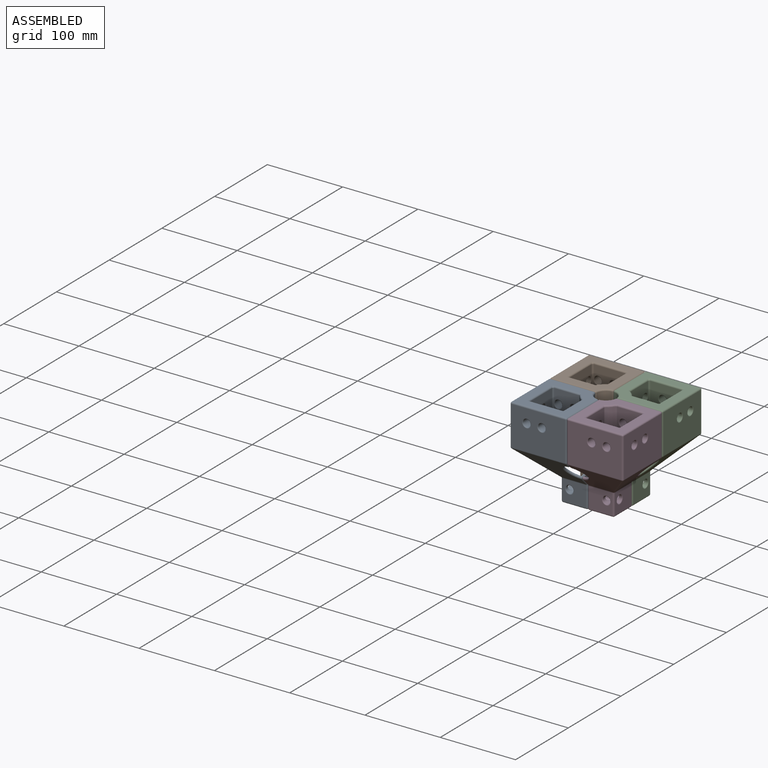
[diagram: assembled view]
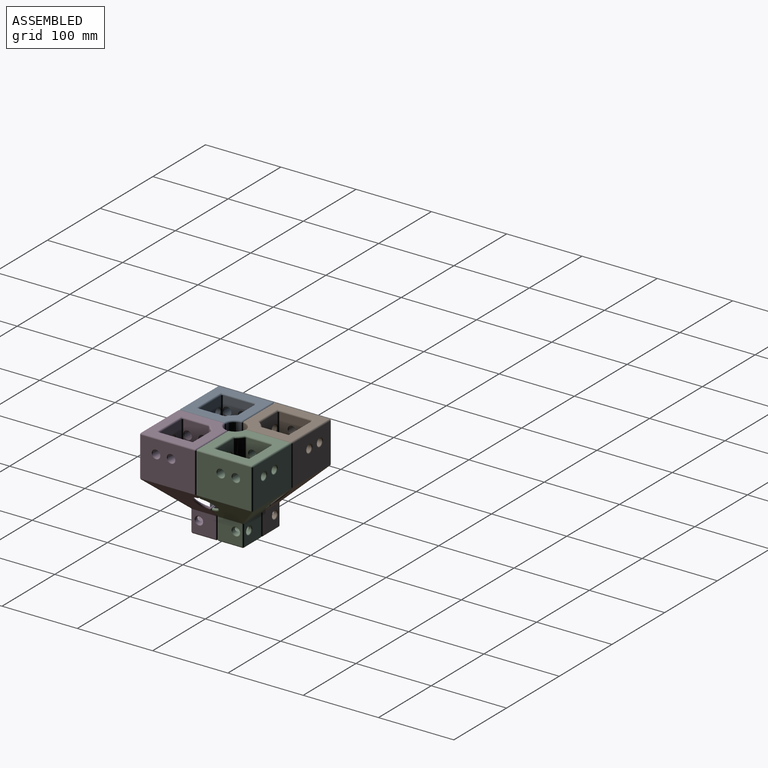
[diagram: assembled view, second angle]
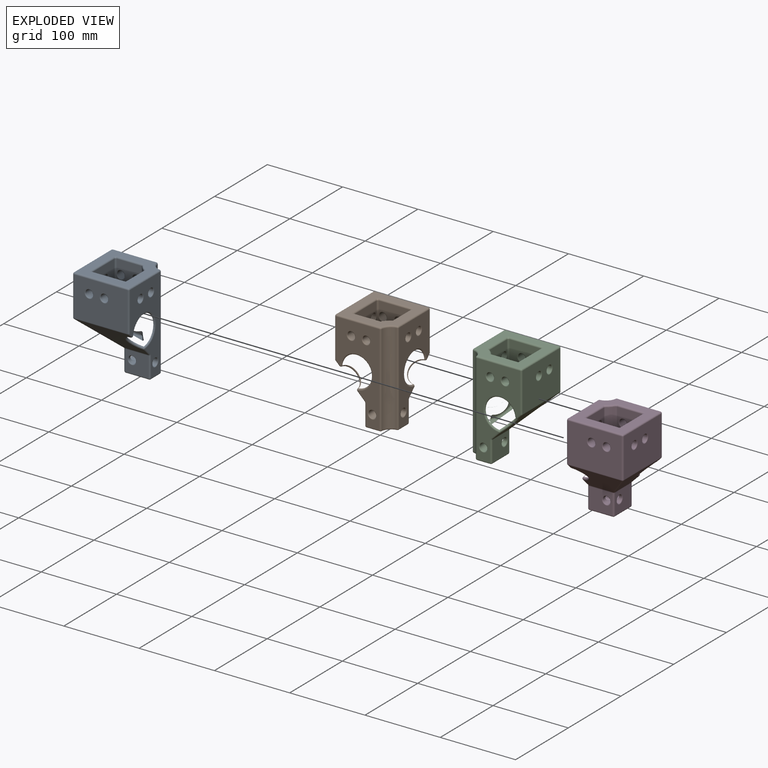
[diagram: exploded view]
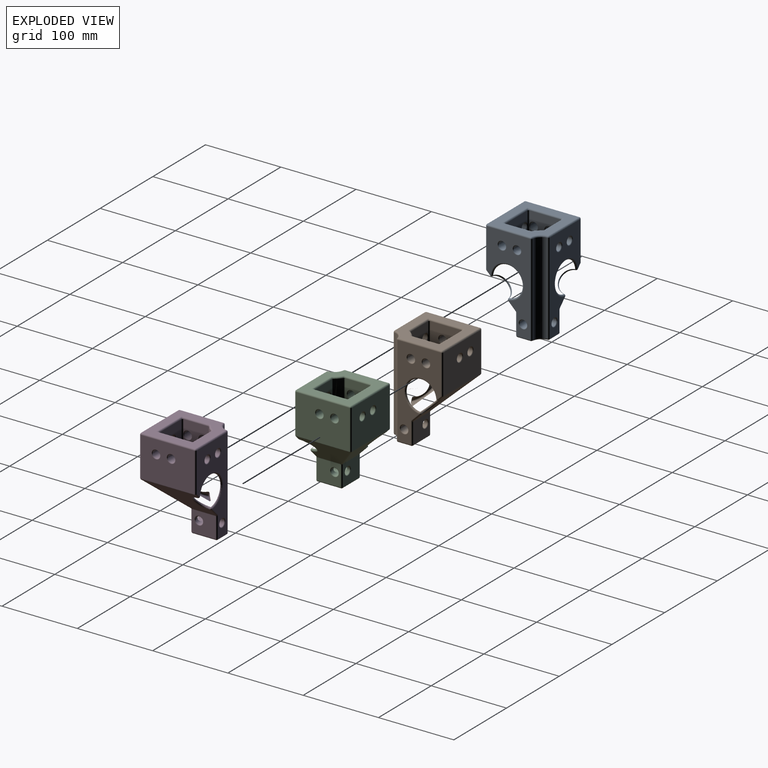
[diagram: exploded view, second angle]
ASSEMBLY  parts=4 mates=3
PART A: 153 faces, bbox 75.1x75.1x125.1 mm
  f0: cylinder r=5mm len=10mm, axis (0,1,0), area 162.7mm2, adj f1,f151,f152
  f1: bspline ~10x6mm, area 0mm2, adj f0,f2
  f2: cylinder r=5mm len=10mm, axis (1,0,0), area 194.2mm2, adj f1,f3,f150
  f3: bspline ~10x6mm, area 0mm2, adj f2,f4
  f4: cylinder r=5mm len=24mm, axis (0,1,0), area 634mm2, adj f3,f5,f149
  f5: bspline ~10x6mm, area 0mm2, adj f4,f6
  f6: cylinder r=5mm len=23mm, axis (1,0,0), area 602.6mm2, adj f5,f7,f151
  f7: torus R=6mm, axis (-1,0,0), area 52.9mm2, adj f6,f8
  f8: plane 121x57.63mm, normal (-1,0,0), area 3358.4mm2, adj f7,f9,f139,f140,f141,f142,f143,f144
  f9: cylinder r=2mm len=52.17mm, axis (0,0,-1), area 163.9mm2, adj f8,f10,f137,f138
  f10: sphere r=2mm, area 8.6mm2, adj f9,f11,f139
  f11: cylinder r=2mm len=71mm, axis (1,0,0), area 223.1mm2, adj f10,f12,f136,f138
  f12: plane 71x71mm, normal (0,0,1), area 2569.4mm2, adj f11,f13,f128,f129,f131,f132,f133,f134
  f13: cylinder r=2mm len=71mm, axis (0,-1,0), area 223.1mm2, adj f12,f14,f127,f136
  f14: plane 71x52.17mm, normal (1,0,0), area 3478mm2, adj f13,f15,f123,f124,f125,f126
  f15: cylinder r=2mm len=52.17mm, axis (0,0,1), area 163.9mm2, adj f14,f16,f136,f138
  f16: sphere r=2mm, area 4.4mm2, adj f15,f17,f122,f123
  f17: cylinder r=2mm len=71mm, axis (-1,0,0), area 111.5mm2, adj f16,f18,f137,f138
  f18: plane 71x38.83mm, normal (0,0.71,-0.71), area 2448mm2, adj f17,f19,f23,f122,f144,f146
  f19: torus R=16.97mm, axis (0,-0.71,0.71), area 203.9mm2, adj f18,f20,f21,f22
  f20: sphere r=2mm, area 9.1mm2, adj f19,f145,f146
  f21: sphere r=20mm, area 1776.4mm2, adj f19,f145
  f22: sphere r=2mm, area 5.1mm2, adj f19,f144,f145
  f23: cylinder r=2mm len=32.17mm, axis (-1,0,0), area 49.6mm2, adj f18,f24,f121,f143
  f24: bspline ~2.78x2.78mm, area 4.4mm2, adj f23,f25,f120,f122
  f25: cylinder r=2mm len=27.17mm, axis (0,0,1), area 85.4mm2, adj f24,f26,f119,f121
  f26: plane 31x27.17mm, normal (1,0,0), area 729.2mm2, adj f25,f27,f118,f120,f150
  f27: cylinder r=2mm len=31mm, axis (0,-1,0), area 97.4mm2, adj f26,f28,f116,f117,f119
  f28: plane 31x31mm, normal (0,0,-1), area 830.1mm2, adj f27,f29,f31,f115,f141
  f29: cylinder r=2mm len=31mm, axis (1,0,0), area 97.4mm2, adj f28,f30,f117,f119,f121
  f30: sphere r=2mm, area 8.6mm2, adj f29,f141,f142
  f31: torus R=15.5mm, axis (0,0,1), area 58.6mm2, adj f28,f32,f33,f114
  f32: sphere r=2mm, area 7.7mm2, adj f31,f140,f141
  f33: cylinder r=13.5mm len=121mm, axis (0,0,-1), area 2143.2mm2, adj f31,f34,f129,f140
  f34: cylinder r=2mm len=121mm, axis (0,0,-1), area 348.8mm2, adj f33,f35,f36,f114
  f35: sphere r=2mm, area 7.7mm2, adj f34,f128,f129
  f36: plane 121x57.63mm, normal (0,-1,0), area 3358.4mm2, adj f34,f37,f44,f45,f46,f47,f113,f115
  f37: cylinder r=2mm len=6.59mm, axis (-0.71,0,-0.71), area 23mm2, adj f36,f38,f42,f43
  f38: sphere r=2mm, area 8.3mm2, adj f37,f39,f44
  f39: torus R=16.97mm, axis (0.71,0,-0.71), area 203.9mm2, adj f38,f40,f41,f43
  f40: sphere r=20mm, area 1776.4mm2, adj f39,f44
  f41: sphere r=2mm, area 7.5mm2, adj f39,f44,f45
  f42: sphere r=2mm, area 3.1mm2, adj f37,f123,f124
  f43: plane 71x38.83mm, normal (0.71,0,-0.71), area 2448mm2, adj f37,f39,f45,f120,f122,f123
  f44: torus R=21.91mm, axis (0,1,0), area 277.1mm2, adj f36,f38,f40,f41
  f45: cylinder r=2mm len=11.23mm, axis (-0.71,0,-0.71), area 43.6mm2, adj f36,f41,f43,f46
  f46: torus R=4mm, axis (0,1,0), area 6.7mm2, adj f36,f45,f118,f120
  f47: torus R=6mm, axis (0,1,0), area 52.9mm2, adj f36,f48
  f48: cylinder r=5mm len=13mm, axis (0,-1,0), area 408.4mm2, adj f47,f49
  f49: torus R=6mm, axis (0,1,0), area 52.9mm2, adj f48,f50
  f50: plane 33.83x32.68mm, normal (0,1,0), area 701.2mm2, adj f49,f51,f107,f108,f111,f134
  f51: cylinder r=2mm len=33.83mm, axis (0,0,-1), area 66.3mm2, adj f50,f52,f105,f106
  f52: sphere r=2mm, area 1.4mm2, adj f51,f53,f107
  f53: bspline ~11.4x7.28mm, area 32.3mm2, adj f52,f54,f104,f105
  f54: sphere r=35mm, area 1008.9mm2, adj f53,f55,f100,f101,f103,f107
  f55: bspline ~10.93x6.99mm, area 23mm2, adj f54,f56,f98,f99,f100
  f56: plane 41.6x38.65mm, normal (-0.71,0,0.71), area 380.7mm2, adj f55,f57,f96,f98,f100
  f57: cylinder r=2mm len=39.98mm, axis (-0.58,-0.58,-0.58), area 139.9mm2, adj f56,f58,f95,f98
  f58: sphere r=2mm, area 5.1mm2, adj f57,f59,f87,f96
  f59: cylinder r=2mm len=25.67mm, axis (1,0,0), area 40.3mm2, adj f58,f60,f79,f95
  f60: sphere r=2mm, area 2.8mm2, adj f59,f61,f78
  f61: torus R=35mm, axis (0,-1,0), area 85.7mm2, adj f60,f62,f76,f79
  f62: sphere r=2mm, area 2.8mm2, adj f61,f63,f75
  f63: cylinder r=2mm len=28.77mm, axis (0,0,1), area 87.3mm2, adj f62,f64,f67,f74,f79
  f64: bspline ~8.23x2.03mm, area 8.4mm2, adj f63,f65,f66
  f65: cylinder r=5mm len=13mm, axis (1,0,0), area 408.4mm2, adj f64,f66,f147
  f66: torus R=6mm, axis (-1,0,0), area 43.1mm2, adj f64,f65,f67
  f67: plane 33.83x32.68mm, normal (1,0,0), area 701.2mm2, adj f63,f66,f68,f72,f75,f132
  f68: cylinder r=2mm len=33.83mm, axis (0,0,-1), area 66.3mm2, adj f67,f69,f71,f105
  f69: sphere r=2mm, area 1.4mm2, adj f68,f70,f75
  f70: bspline ~11.4x7.28mm, area 32.3mm2, adj f69,f76,f104,f105
  f71: bspline ~2.89x2.3mm, area 2.6mm2, adj f68,f132,f133
  f72: torus R=6mm, axis (-1,0,0), area 52.9mm2, adj f67,f73
  f73: cylinder r=5mm len=13mm, axis (1,0,0), area 408.4mm2, adj f72,f148
  f74: bspline ~4x4mm, area 4.2mm2, adj f63,f131,f132
  f75: torus R=32.86mm, axis (-1,0,0), area 73.5mm2, adj f62,f67,f69,f76
  f76: sphere r=35mm, area 1009mm2, adj f61,f70,f75,f77,f78,f103
  f77: bspline ~10.93x6.99mm, area 23mm2, adj f76,f78,f95,f98,f99
  f78: torus R=36.99mm, axis (0,-0.71,0.71), area 174.2mm2, adj f60,f76,f77,f95
  f79: plane 45.96x41mm, normal (0,-1,0), area 1500.7mm2, adj f59,f61,f63,f80,f84,f87,f131
  f80: torus R=6mm, axis (0,-1,0), area 43.1mm2, adj f79,f81,f83
  f81: cylinder r=5mm len=13mm, axis (0,-1,0), area 408.4mm2, adj f80,f82,f83
  f82: torus R=6mm, axis (0,-1,0), area 52.9mm2, adj f81,f138
  f83: bspline ~8.23x2.02mm, area 8.4mm2, adj f80,f81,f87
  f84: torus R=6mm, axis (0,-1,0), area 52.9mm2, adj f79,f85
  f85: cylinder r=5mm len=13mm, axis (0,-1,0), area 408.4mm2, adj f84,f86
  f86: torus R=6mm, axis (0,-1,0), area 52.9mm2, adj f85,f138
  f87: cylinder r=2mm len=45.96mm, axis (0,0,-1), area 138.3mm2, adj f58,f79,f83,f88,f91,f94
  f88: bspline ~8.23x2.03mm, area 8.4mm2, adj f87,f89,f90
  f89: cylinder r=5mm len=13.17mm, axis (1,0,0), area 408.9mm2, adj f88,f90,f126
  f90: torus R=6mm, axis (1,0,0), area 43.1mm2, adj f88,f89,f91
  f91: plane 45.96x41mm, normal (-1,0,0), area 1500.7mm2, adj f87,f90,f92,f96,f101,f111,f135
  f92: torus R=6mm, axis (1,0,0), area 52.9mm2, adj f91,f93
  f93: cylinder r=5mm len=13mm, axis (1,0,0), area 408.4mm2, adj f92,f125
  f94: bspline ~4x4mm, area 4.2mm2, adj f87,f131,f135
  f95: plane 41.6x38.65mm, normal (0,-0.71,0.71), area 380.7mm2, adj f57,f59,f77,f78,f98
  f96: cylinder r=2mm len=25.67mm, axis (0,-1,0), area 40.3mm2, adj f56,f58,f91,f97
  f97: sphere r=2mm, area 4mm2, adj f96,f100,f101
  f98: cylinder r=28.5mm len=9.07mm, axis (0,0,-1), area 42.9mm2, adj f55,f56,f57,f77,f95
  f99: sphere r=2mm, area 10.5mm2, adj f55,f77,f103
  f100: torus R=36.99mm, axis (0.71,0,-0.71), area 174.2mm2, adj f54,f55,f56,f97
  f101: torus R=35mm, axis (1,0,0), area 85.7mm2, adj f54,f91,f97,f102
  f102: sphere r=2mm, area 5.3mm2, adj f101,f107,f111
  f103: torus R=17.62mm, axis (0.71,-0.71,0), area 231.7mm2, adj f54,f76,f99,f104
  f104: sphere r=2mm, area 10.5mm2, adj f53,f70,f103
  f105: cylinder r=28.5mm len=41.86mm, axis (0,0,-1), area 418.8mm2, adj f51,f53,f68,f70,f133
  f106: bspline ~2.89x2.3mm, area 2.6mm2, adj f51,f133,f134
  f107: torus R=32.86mm, axis (0,1,0), area 73.5mm2, adj f50,f52,f54,f102
  f108: torus R=6mm, axis (0,1,0), area 43.1mm2, adj f50,f109,f110
  f109: cylinder r=5mm len=13mm, axis (0,-1,0), area 408.4mm2, adj f108,f110,f113
  f110: bspline ~8.23x2.02mm, area 8.4mm2, adj f108,f109,f111
  f111: cylinder r=2mm len=28.77mm, axis (0,0,1), area 87.3mm2, adj f50,f91,f102,f110,f112
  f112: bspline ~4x4mm, area 4.2mm2, adj f111,f134,f135
  f113: torus R=6mm, axis (0,1,0), area 52.9mm2, adj f36,f109
  f114: sphere r=2mm, area 5.8mm2, adj f31,f34,f115
  f115: cylinder r=2mm len=17.63mm, axis (-1,0,0), area 55.4mm2, adj f28,f36,f114,f116
  f116: sphere r=2mm, area 6.3mm2, adj f27,f115,f118
  f117: sphere r=2mm, area 0.6mm2, adj f27,f29
  f118: cylinder r=2mm len=27.17mm, axis (0,0,-1), area 85.4mm2, adj f26,f36,f46,f116
  f119: sphere r=2mm, area 2.3mm2, adj f25,f27,f29
  f120: cylinder r=2mm len=32.17mm, axis (0,-1,0), area 49.6mm2, adj f24,f26,f43,f46
  f121: plane 31x27.17mm, normal (0,1,0), area 729.2mm2, adj f23,f25,f29,f142,f152
  f122: cylinder r=2mm len=40.24mm, axis (0.58,0.58,0.58), area 140.9mm2, adj f16,f18,f24,f43
  f123: cylinder r=2mm len=71mm, axis (0,1,0), area 111.5mm2, adj f14,f16,f42,f43
  f124: cylinder r=2mm len=52.17mm, axis (0,0,-1), area 163.9mm2, adj f14,f36,f42,f127
  f125: torus R=6mm, axis (1,0,0), area 52.9mm2, adj f14,f93
  f126: torus R=6mm, axis (1,0,0), area 52.9mm2, adj f14,f89
  f127: sphere r=2mm, area 6.3mm2, adj f13,f124,f128
  f128: cylinder r=2mm len=57.63mm, axis (1,0,0), area 181mm2, adj f12,f35,f36,f127
  f129: torus R=15.5mm, axis (0,0,1), area 58.6mm2, adj f12,f33,f35,f130
  f130: sphere r=2mm, area 3.7mm2, adj f129,f139,f140
  f131: cylinder r=2mm len=49mm, axis (-1,0,0), area 141.4mm2, adj f12,f74,f79,f94
  f132: cylinder r=2mm len=38.91mm, axis (0,1,0), area 112.4mm2, adj f12,f67,f71,f74
  f133: torus R=26.5mm, axis (0,0,1), area 40.6mm2, adj f12,f71,f105,f106
  f134: cylinder r=2mm len=38.91mm, axis (-1,0,0), area 112.4mm2, adj f12,f50,f106,f112
  f135: cylinder r=2mm len=49mm, axis (0,1,0), area 141.4mm2, adj f12,f91,f94,f112
  f136: sphere r=2mm, area 4mm2, adj f11,f13,f15
  f137: sphere r=2mm, area 2.3mm2, adj f9,f17,f146
  f138: plane 71x52.17mm, normal (0,1,0), area 3478mm2, adj f9,f11,f15,f17,f82,f86
  f139: cylinder r=2mm len=57.63mm, axis (0,-1,0), area 181mm2, adj f8,f10,f12,f130
  f140: cylinder r=2mm len=121mm, axis (0,0,-1), area 348.8mm2, adj f8,f32,f33,f130
  f141: cylinder r=2mm len=17.63mm, axis (0,1,0), area 55.4mm2, adj f8,f28,f30,f32
  f142: cylinder r=2mm len=27.17mm, axis (0,0,1), area 85.4mm2, adj f8,f30,f121,f143
  f143: torus R=4mm, axis (-1,0,0), area 6.7mm2, adj f8,f23,f142,f144
  f144: cylinder r=2mm len=11.23mm, axis (0,-0.71,-0.71), area 43.6mm2, adj f8,f18,f22,f143
  f145: torus R=21.91mm, axis (-1,0,0), area 277.1mm2, adj f8,f20,f21,f22
  f146: cylinder r=2mm len=6.59mm, axis (0,-0.71,-0.71), area 23mm2, adj f8,f18,f20,f137
  f147: torus R=6mm, axis (-1,0,0), area 52.9mm2, adj f8,f65
  f148: torus R=6mm, axis (-1,0,0), area 52.9mm2, adj f8,f73
  f149: torus R=6mm, axis (0,1,0), area 52.9mm2, adj f4,f36
  f150: torus R=6mm, axis (-1,0,0), area 52.9mm2, adj f2,f26
  f151: bspline ~10x6mm, area 0mm2, adj f0,f6
  f152: torus R=6mm, axis (0,-1,0), area 52.9mm2, adj f0,f121
PART B: same geometry as A
PART C: same geometry as A
PART D: same geometry as A
PLACE A rot(axis=(0,0,1),180deg) t=(0,0,0)mm
PLACE B rot(axis=(0,0,1),90deg) t=(0,0,0)mm
PLACE C at identity fixed
PLACE D rot(axis=(0,0,-1),90deg) t=(0,0,0)mm
MATE fastened D.f126 <-> C.f80  axis (0,1,0) through (53,0,100)mm
MATE fastened B.f80 <-> C.f126  axis (1,0,0) through (0,53,100)mm
MATE fastened A.f126 <-> D.f80  axis (1,0,0) through (0,-53,100)mm
